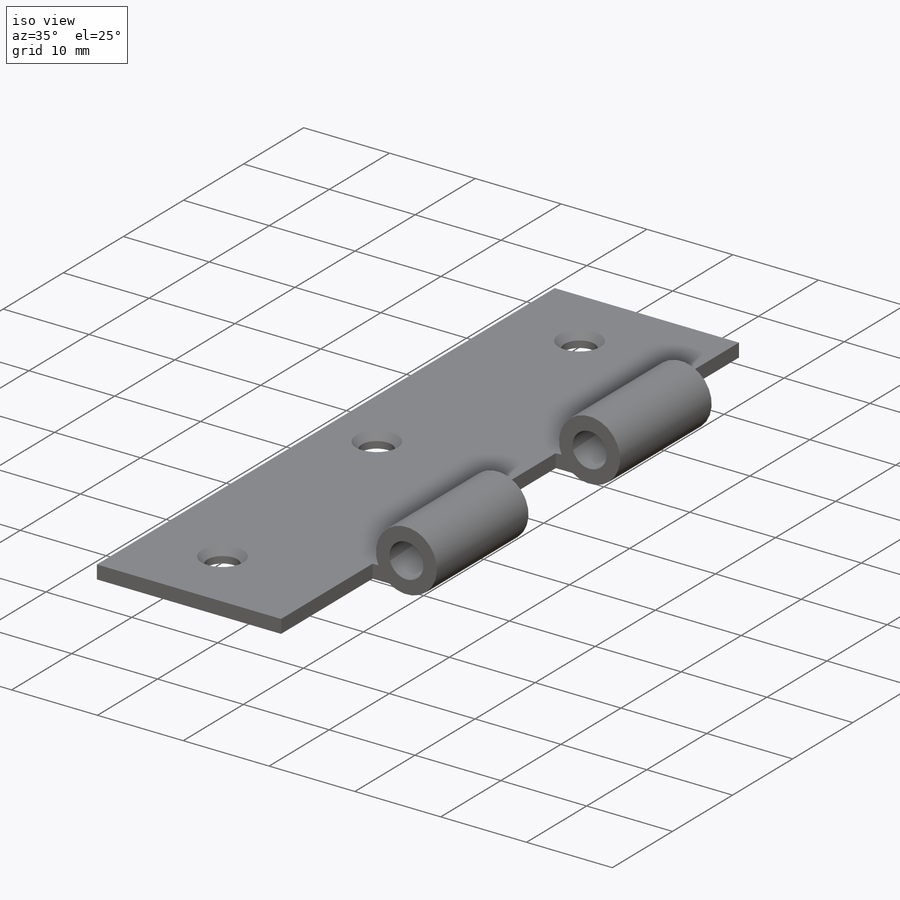
[diagram: iso view]
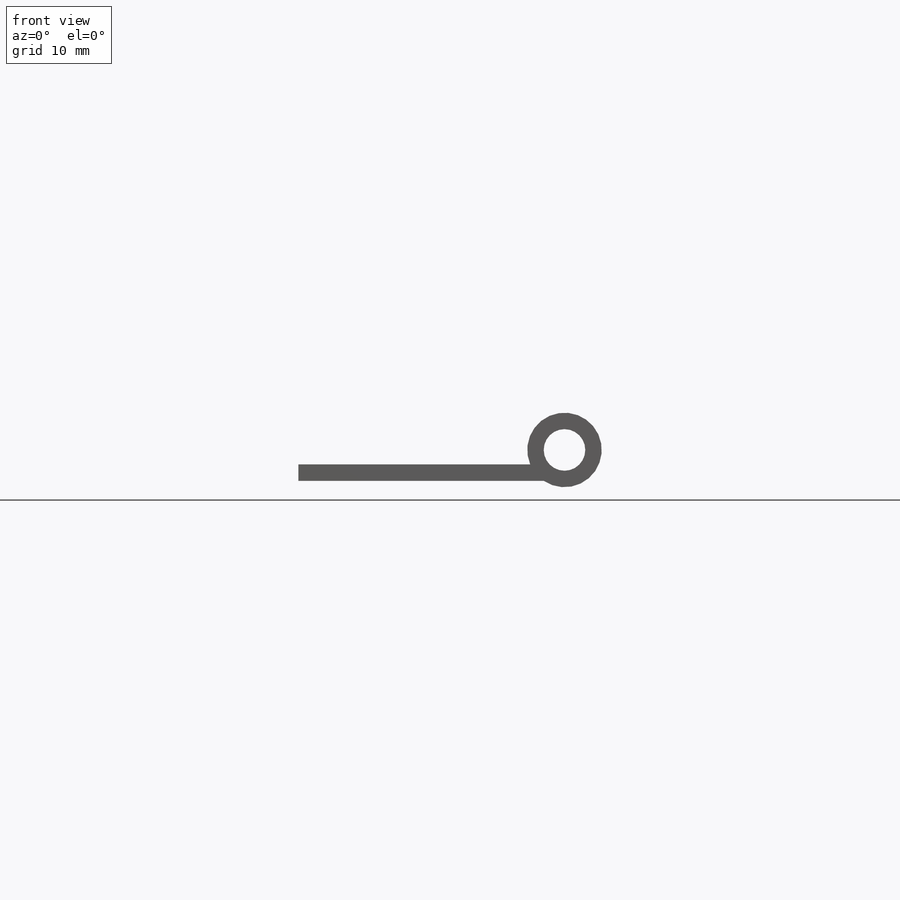
[diagram: front view]
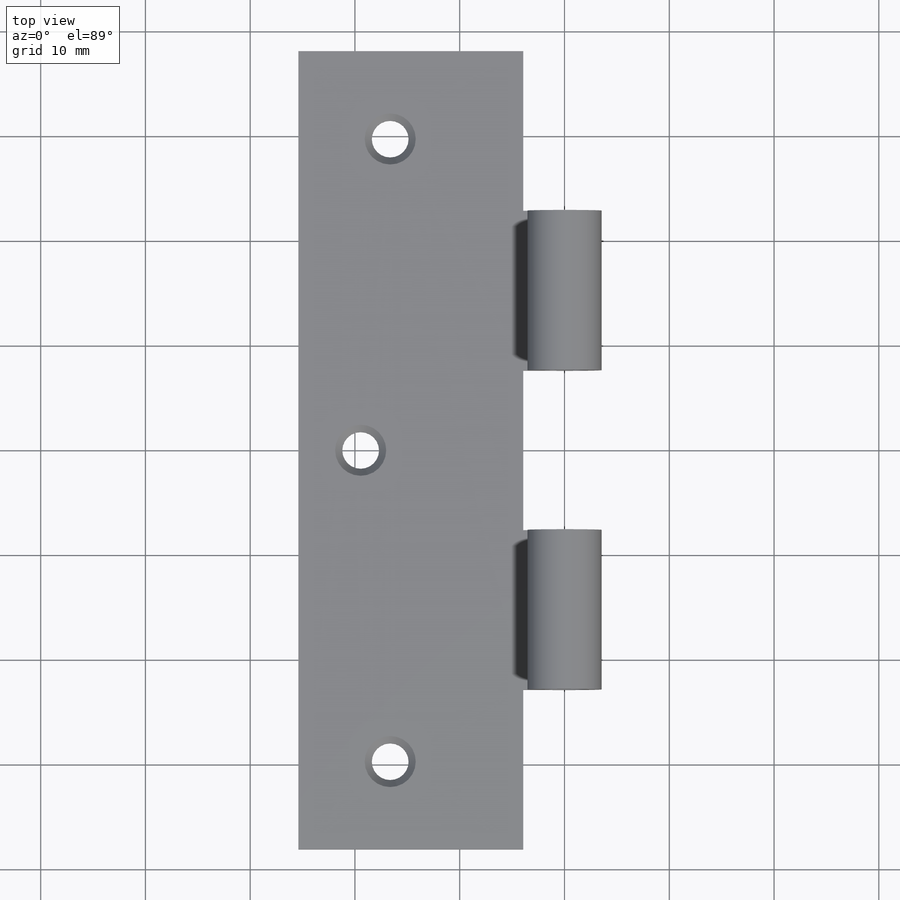
[diagram: top view]
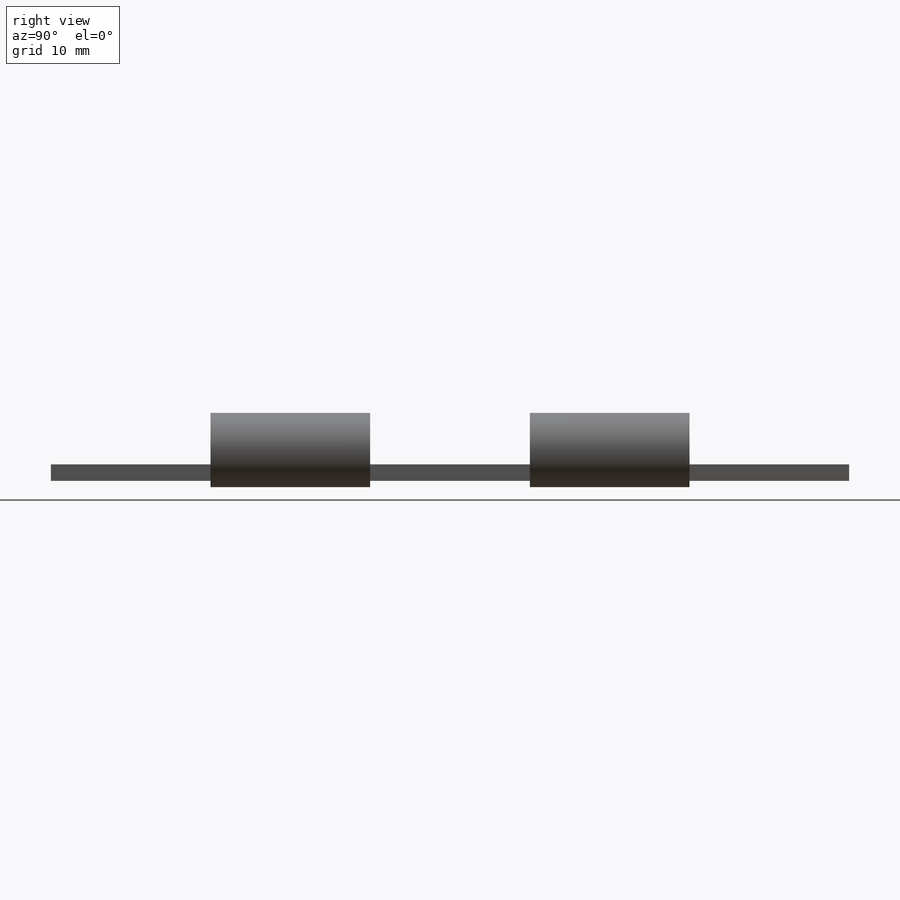
[diagram: right view]
SOLIDWORKS PART (.sldprt)
format: sldprt  version: not decoded by parser v0  size: 316,928 bytes
history: native  units: mm
features: sketch x14, extrude x6, hole x3, cut_extrude x2, material x1, plane x1 (+13 scaffold rows collapsed)
feature tree (40):
  scaffold x13  (default folders/planes/origin — collapsed)
  material  "Material <not specified>"
  plane  "Plane1"  Offset=7.62mm
  sketch  "Sketch1"
  extrude  "Boss-Extrude1"  Depth=15.24mm
  sketch  "Sketch2"
  extrude  "Boss-Extrude2"  Depth=0.254647mm
  sketch  "Sketch3"
  extrude  "Boss-Extrude3"  Depth=21.866378mm
  sketch  "Sketch4"
  cut_extrude  "Cut-Extrude1"  Depth=0.403378mm
  sketch  "Sketch5"
  extrude  "Boss-Extrude4"  Depth=15.24mm
  sketch  "Sketch6"
  extrude  "Boss-Extrude5"  Depth=15.24mm
  sketch  "Sketch7"
  extrude  "Boss-Extrude6"  Depth=15.24mm
  hole  "M3.5 Clearance Hole1"  Diameter=3.96875mm Depth=30.480025mm
  sketch  "Sketch9"
  sketch  "Sketch8"  dims[hole-wizard template sketch: 60 standard entries collapsed; hole parameters kept: c18.Thru Hole Depth=~30.480025mm]
  hole  "M3.5 Clearance Hole2"  Diameter=3.96875mm Depth=60.960025mm
  sketch  "Sketch11"
  sketch  "Sketch10"  dims[hole-wizard template sketch: 60 standard entries collapsed; hole parameters kept: c18.Thru Hole Depth=~60.960025mm]
  hole  "CSK for M3 Flat Head Machine Screw1"  Diameter=3.5052mm Depth=2.179971mm
  sketch  "Sketch13"
  sketch  "Sketch12"  dims[hole-wizard template sketch: 54 standard entries collapsed; hole parameters kept: c17.Thru Hole Dia.=3.5052mm c17.Thru Hole Depth=~2.179971mm c17.Near C'Sink Dia.=~4.874153mm c17.D4=~3.666174mm c17.Near C'Sink Angle=82.0deg]
  sketch  "Sketch14"  dims[D1=5.0mm D2=5.0mm]
  cut_extrude  "Cut-Extrude2"  [1 undecoded]
decode coverage: 14 of 25 modeling features carry decoded parameters
note: ~ marks probable driven/reference dimensions
note: 1 parameter value undecoded
note: suppression state not decoded; provenance and decode notes live in map.json
